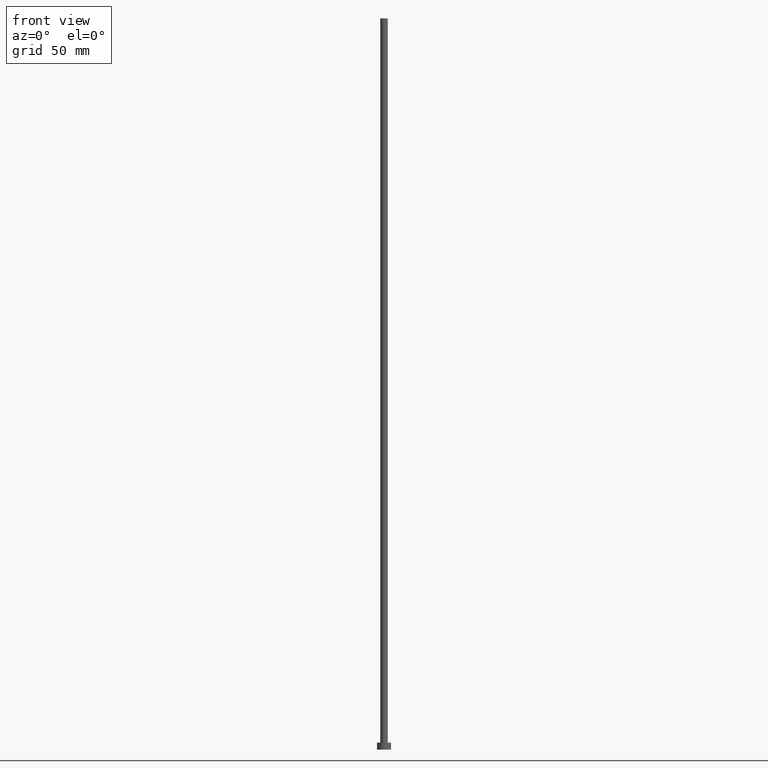
[diagram: clean part render]
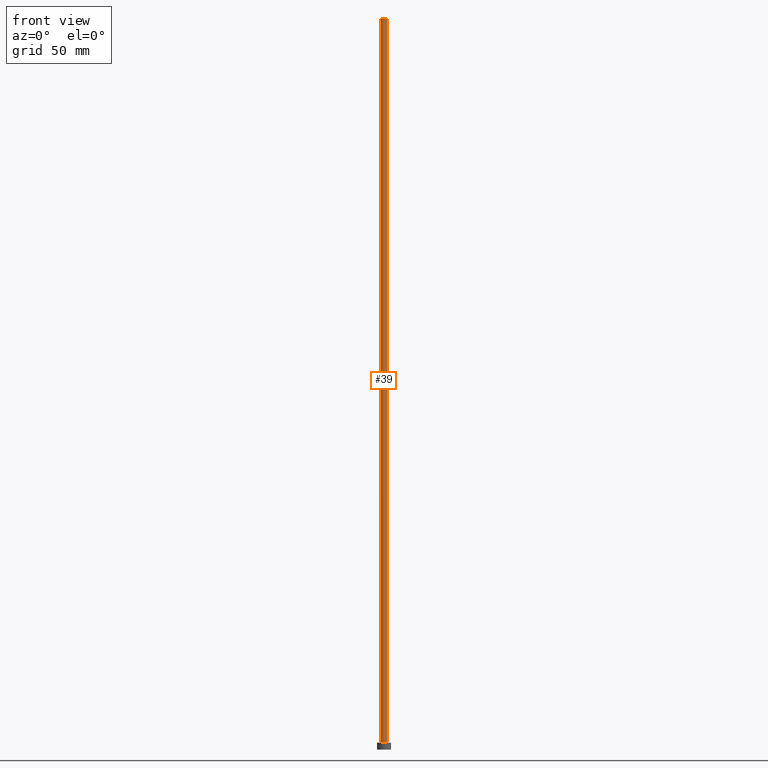
[diagram: same view with one face highlighted and labeled with its STEP entity id]
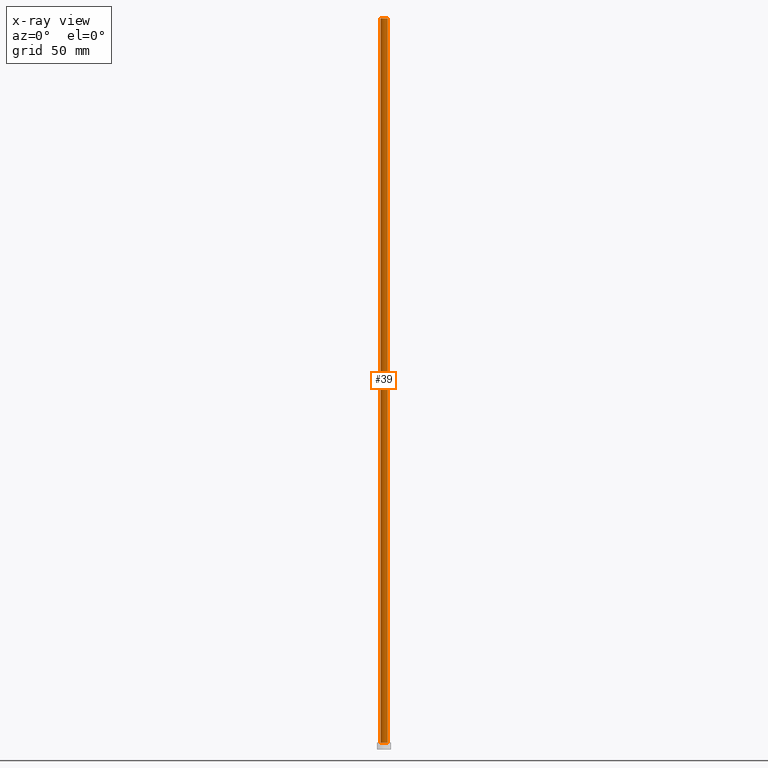
[diagram: x-ray of the same camera — body ghosted, the highlighted face saturated]
A machine part, front view. The second image highlights one B-rep face of the part: STEP entity #39.
The next image is the same camera in x-ray: the body ghosted, the highlighted face saturated — about 0% of this face is hidden behind the body in this view.
In plain terms, the highlighted cylindrical surface (edge-blend (fillet) strip) has radius 1.6 mm, axis along (-0, -0, -1).
Its self-contained STEP definition (entity closure, byte-faithful):
#3 = ORIENTED_EDGE ( 'NONE', *, *, #116, .T. ) ;
#10 = AXIS2_PLACEMENT_3D ( 'NONE', #52, #149, #31 ) ;
#11 = DIRECTION ( 'NONE',  ( -1.000000000000000000, 0.000000000000000000, 0.000000000000000000 ) ) ;
#13 = CARTESIAN_POINT ( 'NONE',  ( 1.600000000000000089, 1.959434878635765230E-16, 3.000000000000000000 ) ) ;
#15 = AXIS2_PLACEMENT_3D ( 'NONE', #88, #202, #169 ) ;
#29 = CARTESIAN_POINT ( 'NONE',  ( -1.600000000000000089, 0.000000000000000000, 315.0000000000000000 ) ) ;
#31 = DIRECTION ( 'NONE',  ( 1.000000000000000000, 0.000000000000000000, 0.000000000000000000 ) ) ;
#39 = ADVANCED_FACE ( 'NONE', ( #137 ), #110, .T. ) ;
#40 = VERTEX_POINT ( 'NONE', #188 ) ;
#43 = AXIS2_PLACEMENT_3D ( 'NONE', #148, #112, #11 ) ;
#47 = CIRCLE ( 'NONE', #10, 1.600000000000000089 ) ;
#52 = CARTESIAN_POINT ( 'NONE',  ( 0.000000000000000000, 0.000000000000000000, 315.0000000000000000 ) ) ;
#74 = LINE ( 'NONE', #97, #181 ) ;
#76 = VECTOR ( 'NONE', #86, 1000.000000000000000 ) ;
#78 = VERTEX_POINT ( 'NONE', #13 ) ;
#84 = ORIENTED_EDGE ( 'NONE', *, *, #232, .F. ) ;
#86 = DIRECTION ( 'NONE',  ( -0.000000000000000000, -0.000000000000000000, -1.000000000000000000 ) ) ;
#87 = EDGE_CURVE ( 'NONE', #238, #78, #250, .T. ) ;
#88 = CARTESIAN_POINT ( 'NONE',  ( 0.000000000000000000, 0.000000000000000000, 3.000000000000000000 ) ) ;
#97 = CARTESIAN_POINT ( 'NONE',  ( 1.600000000000000089, 1.959434878635765230E-16, 315.0000000000000000 ) ) ;
#98 = EDGE_CURVE ( 'NONE', #177, #40, #47, .T. ) ;
#105 = ORIENTED_EDGE ( 'NONE', *, *, #87, .T. ) ;
#110 = CYLINDRICAL_SURFACE ( 'NONE', #43, 1.600000000000000089 ) ;
#112 = DIRECTION ( 'NONE',  ( -0.000000000000000000, -0.000000000000000000, -1.000000000000000000 ) ) ;
#116 = EDGE_CURVE ( 'NONE', #177, #238, #131, .T. ) ;
#131 = LINE ( 'NONE', #151, #76 ) ;
#137 = FACE_OUTER_BOUND ( 'NONE', #255, .T. ) ;
#139 = ORIENTED_EDGE ( 'NONE', *, *, #98, .F. ) ;
#148 = CARTESIAN_POINT ( 'NONE',  ( 0.000000000000000000, 0.000000000000000000, 315.0000000000000000 ) ) ;
#149 = DIRECTION ( 'NONE',  ( 0.000000000000000000, 0.000000000000000000, 1.000000000000000000 ) ) ;
#151 = CARTESIAN_POINT ( 'NONE',  ( -1.600000000000000089, 0.000000000000000000, 315.0000000000000000 ) ) ;
#153 = CARTESIAN_POINT ( 'NONE',  ( -1.600000000000000089, 0.000000000000000000, 3.000000000000000000 ) ) ;
#169 = DIRECTION ( 'NONE',  ( 1.000000000000000000, 0.000000000000000000, 0.000000000000000000 ) ) ;
#177 = VERTEX_POINT ( 'NONE', #29 ) ;
#181 = VECTOR ( 'NONE', #228, 1000.000000000000000 ) ;
#188 = CARTESIAN_POINT ( 'NONE',  ( 1.600000000000000089, 1.959434878635765230E-16, 315.0000000000000000 ) ) ;
#202 = DIRECTION ( 'NONE',  ( 0.000000000000000000, 0.000000000000000000, 1.000000000000000000 ) ) ;
#228 = DIRECTION ( 'NONE',  ( -0.000000000000000000, -0.000000000000000000, -1.000000000000000000 ) ) ;
#232 = EDGE_CURVE ( 'NONE', #40, #78, #74, .T. ) ;
#238 = VERTEX_POINT ( 'NONE', #153 ) ;
#250 = CIRCLE ( 'NONE', #15, 1.600000000000000089 ) ;
#255 = EDGE_LOOP ( 'NONE', ( #84, #139, #3, #105 ) ) ;